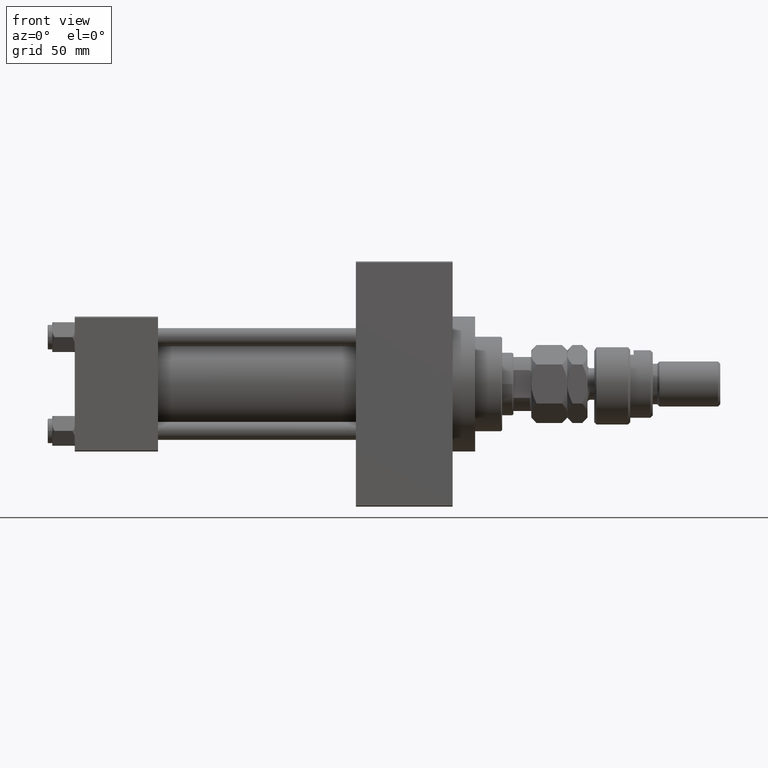
[diagram: clean part render]
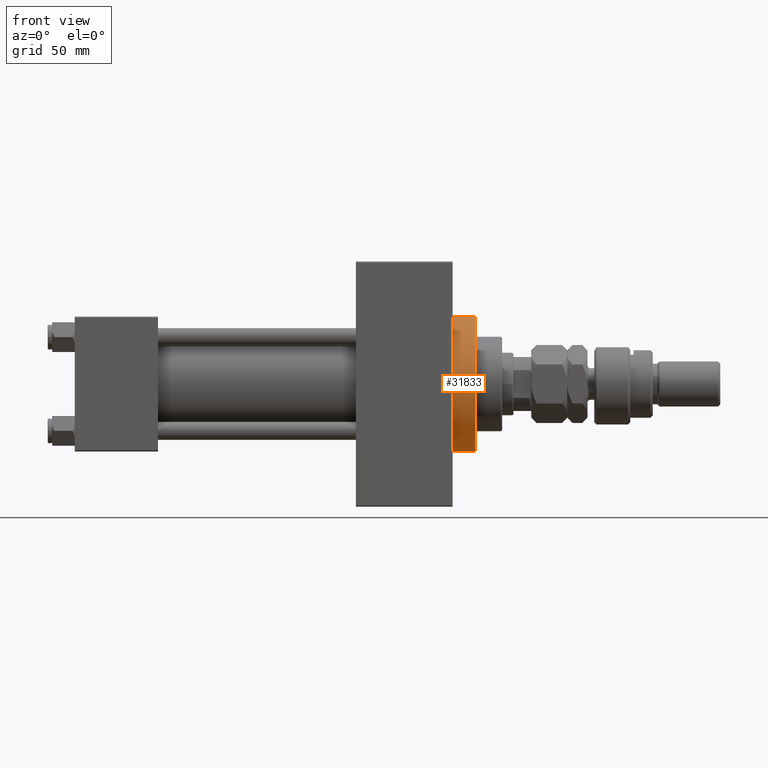
[diagram: same view with one face highlighted and labeled with its STEP entity id]
A machine part, front view. The second image highlights one B-rep face of the part: STEP entity #31833.
In plain terms, the highlighted cylindrical surface (partial cylindrical patch) has radius 30 mm, axis along (-1, -0, -0).
Its self-contained STEP definition (entity closure, byte-faithful):
#1003 = AXIS2_PLACEMENT_3D ( 'NONE', #30342, #46500, #50730 ) ;
#3188 = EDGE_CURVE ( 'NONE', #31920, #21822, #36759, .T. ) ;
#6100 = DIRECTION ( 'NONE',  ( 0.000000000000000000, 0.000000000000000000, -1.000000000000000000 ) ) ;
#6825 = ORIENTED_EDGE ( 'NONE', *, *, #14060, .F. ) ;
#7326 = VECTOR ( 'NONE', #49762, 1000.000000000000000 ) ;
#7399 = VERTEX_POINT ( 'NONE', #41083 ) ;
#7938 = AXIS2_PLACEMENT_3D ( 'NONE', #22406, #11779, #12556 ) ;
#9483 = EDGE_CURVE ( 'NONE', #37786, #21822, #21688, .T. ) ;
#9548 = DIRECTION ( 'NONE',  ( 1.000000000000000000, 0.000000000000000000, 0.000000000000000000 ) ) ;
#11779 = DIRECTION ( 'NONE',  ( 1.000000000000000000, 0.000000000000000000, 0.000000000000000000 ) ) ;
#12556 = DIRECTION ( 'NONE',  ( 0.000000000000000000, 0.000000000000000000, -1.000000000000000000 ) ) ;
#14060 = EDGE_CURVE ( 'NONE', #45270, #37786, #30991, .T. ) ;
#14086 = DIRECTION ( 'NONE',  ( 1.000000000000000000, 0.000000000000000000, 0.000000000000000000 ) ) ;
#14176 = CYLINDRICAL_SURFACE ( 'NONE', #1003, 30.00000000000000000 ) ;
#19802 = EDGE_LOOP ( 'NONE', ( #36035, #6825, #33469, #45577, #44593 ) ) ;
#20159 = CARTESIAN_POINT ( 'NONE',  ( 167.9999999999999716, 3.673940397442059178E-15, -30.00000000000000000 ) ) ;
#20850 = AXIS2_PLACEMENT_3D ( 'NONE', #45600, #9548, #37398 ) ;
#21688 = LINE ( 'NONE', #29381, #7326 ) ;
#21822 = VERTEX_POINT ( 'NONE', #20159 ) ;
#22104 = AXIS2_PLACEMENT_3D ( 'NONE', #41391, #14086, #6100 ) ;
#22406 = CARTESIAN_POINT ( 'NONE',  ( 167.9999999999999716, 0.000000000000000000, 0.000000000000000000 ) ) ;
#22660 = FACE_OUTER_BOUND ( 'NONE', #19802, .T. ) ;
#22669 = LINE ( 'NONE', #50218, #50068 ) ;
#26089 = CARTESIAN_POINT ( 'NONE',  ( 178.0000000000000000, 3.673940397442059178E-15, -30.00000000000000000 ) ) ;
#28239 = CARTESIAN_POINT ( 'NONE',  ( 178.0000000000000000, 0.000000000000000000, 30.00000000000000000 ) ) ;
#29381 = CARTESIAN_POINT ( 'NONE',  ( 178.0000000000000000, 3.673940397442059178E-15, -30.00000000000000000 ) ) ;
#30342 = CARTESIAN_POINT ( 'NONE',  ( 178.0000000000000000, 0.000000000000000000, 0.000000000000000000 ) ) ;
#30350 = DIRECTION ( 'NONE',  ( -1.000000000000000000, -0.000000000000000000, -0.000000000000000000 ) ) ;
#30444 = EDGE_CURVE ( 'NONE', #7399, #31920, #38997, .T. ) ;
#30991 = CIRCLE ( 'NONE', #20850, 30.00000000000000000 ) ;
#31833 = ADVANCED_FACE ( 'NONE', ( #22660 ), #14176, .T. ) ;
#31920 = VERTEX_POINT ( 'NONE', #44275 ) ;
#32564 = EDGE_CURVE ( 'NONE', #45270, #7399, #22669, .T. ) ;
#33469 = ORIENTED_EDGE ( 'NONE', *, *, #32564, .T. ) ;
#36035 = ORIENTED_EDGE ( 'NONE', *, *, #9483, .F. ) ;
#36759 = CIRCLE ( 'NONE', #7938, 30.00000000000000000 ) ;
#37398 = DIRECTION ( 'NONE',  ( 0.000000000000000000, 0.000000000000000000, -1.000000000000000000 ) ) ;
#37786 = VERTEX_POINT ( 'NONE', #26089 ) ;
#38997 = CIRCLE ( 'NONE', #22104, 30.00000000000000000 ) ;
#41083 = CARTESIAN_POINT ( 'NONE',  ( 167.9999999999999716, 0.000000000000000000, 30.00000000000000000 ) ) ;
#41391 = CARTESIAN_POINT ( 'NONE',  ( 167.9999999999999716, 0.000000000000000000, 0.000000000000000000 ) ) ;
#44275 = CARTESIAN_POINT ( 'NONE',  ( 167.9999999999999716, -30.00000000000000000, 0.000000000000000000 ) ) ;
#44593 = ORIENTED_EDGE ( 'NONE', *, *, #3188, .T. ) ;
#45270 = VERTEX_POINT ( 'NONE', #28239 ) ;
#45577 = ORIENTED_EDGE ( 'NONE', *, *, #30444, .T. ) ;
#45600 = CARTESIAN_POINT ( 'NONE',  ( 178.0000000000000000, 0.000000000000000000, 0.000000000000000000 ) ) ;
#46500 = DIRECTION ( 'NONE',  ( -1.000000000000000000, -0.000000000000000000, -0.000000000000000000 ) ) ;
#49762 = DIRECTION ( 'NONE',  ( -1.000000000000000000, -0.000000000000000000, -0.000000000000000000 ) ) ;
#50068 = VECTOR ( 'NONE', #30350, 1000.000000000000000 ) ;
#50218 = CARTESIAN_POINT ( 'NONE',  ( 178.0000000000000000, 0.000000000000000000, 30.00000000000000000 ) ) ;
#50730 = DIRECTION ( 'NONE',  ( 0.000000000000000000, 0.000000000000000000, 1.000000000000000000 ) ) ;